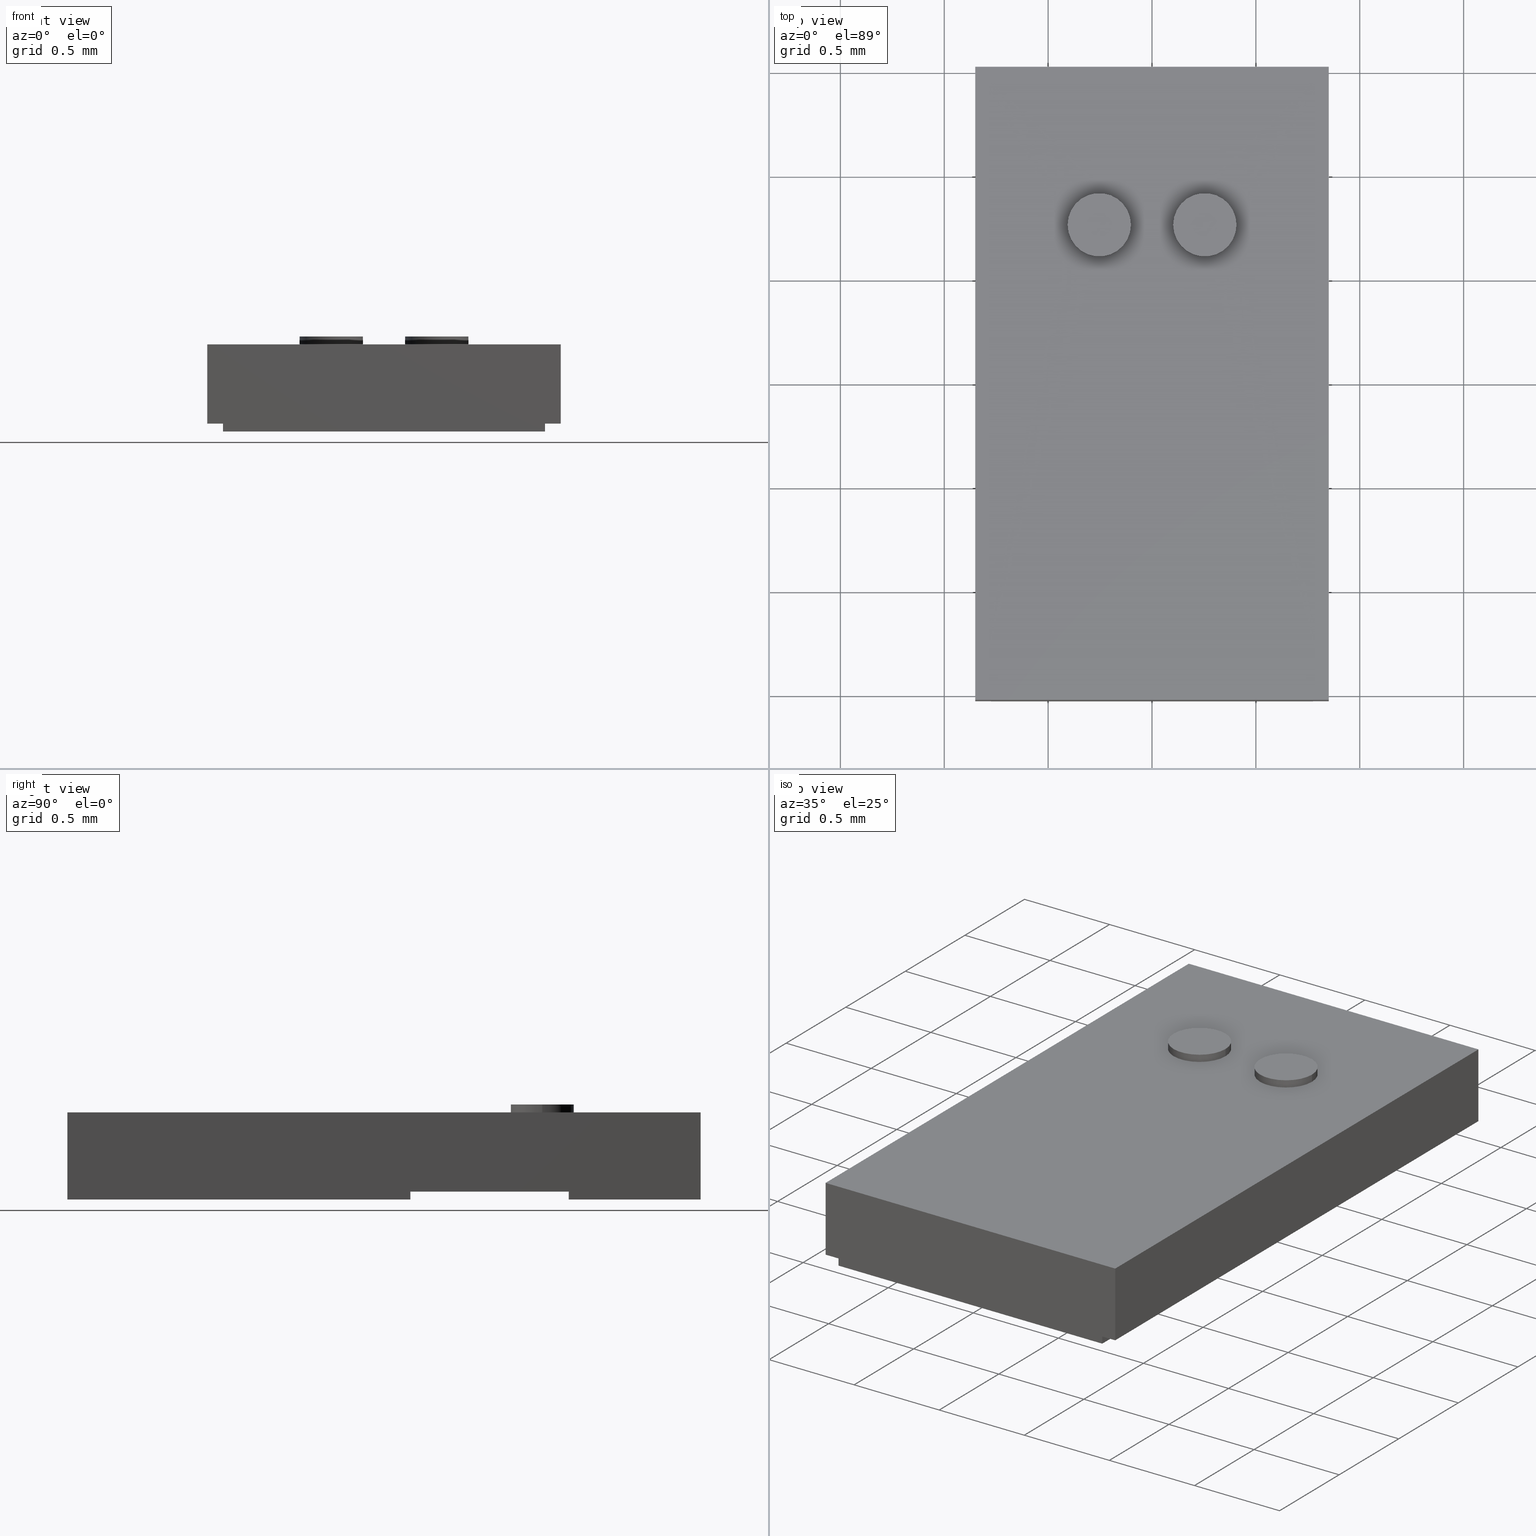
[diagram: canonical four-view strip — front | top / right | iso, engineering-drawing reading convention]
A machine part, canonical four-view strip (front | top / right | iso — engineering-drawing reading convention). The complete STEP part file that produces these views, byte-faithful:
ISO-10303-21;
HEADER;
FILE_DESCRIPTION (( 'STEP AP203' ),
    '1' );
FILE_NAME ('C12N50Z4.STEP',
    '2026-02-18T14:07:09',
    ( '' ),
    ( '' ),
    'SwSTEP 2.0',
    'SolidWorks 2023',
    '' );
FILE_SCHEMA (( 'CONFIG_CONTROL_DESIGN' ));
ENDSEC;

DATA;
#1 = ORIENTED_EDGE ( 'NONE', *, *, #377, .T. ) ;
#2 = CARTESIAN_POINT ( 'NONE',  ( -0.03049991361892168129, -0.05999999999984240162, 0.000000000000000000 ) ) ;
#3 = LINE ( 'NONE', #209, #186 ) ;
#4 = VECTOR ( 'NONE', #616, 39.37007874015748143 ) ;
#5 = DIRECTION ( 'NONE',  ( -3.334288087850889571E-05, -0.9999999994441259865, 0.000000000000000000 ) ) ;
#6 = DIRECTION ( 'NONE',  ( -0.9999999999999925615, -1.216743282002046877E-07, 0.000000000000000000 ) ) ;
#7 = CARTESIAN_POINT ( 'NONE',  ( 0.000000000000000000, 0.000000000000000000, 0.01800000000000000211 ) ) ;
#8 = PERSON_AND_ORGANIZATION_ROLE ( 'classification_officer' ) ;
#9 = DIRECTION ( 'NONE',  ( -0.000000000000000000, 0.000000000000000000, 1.000000000000000000 ) ) ;
#10 = ORIENTED_EDGE ( 'NONE', *, *, #119, .T. ) ;
#11 = CARTESIAN_POINT ( 'NONE',  ( -0.009999999999990906788, 0.02999999999997271516, 0.01800000000000000211 ) ) ;
#12 = ADVANCED_FACE ( 'NONE', ( #204 ), #655, .T. ) ;
#13 = DIRECTION ( 'NONE',  ( -1.000000000000000000, 0.000000000000000000, 0.000000000000000000 ) ) ;
#14 = ORIENTED_EDGE ( 'NONE', *, *, #358, .F. ) ;
#15 = AXIS2_PLACEMENT_3D ( 'NONE', #173, #278, #332 ) ;
#16 = CLOSED_SHELL ( 'NONE', ( #579, #12, #63, #367, #597, #292, #163, #350, #612, #243, #661, #86, #25, #642, #475, #500, #131, #445, #551, #223 ) ) ;
#17 = LINE ( 'NONE', #81, #487 ) ;
#18 = APPROVAL ( #515, 'UNSPECIFIED' ) ;
#19 = ORIENTED_EDGE ( 'NONE', *, *, #629, .F. ) ;
#20 = CARTESIAN_POINT ( 'NONE',  ( 0.000000000000000000, 0.000000000000000000, 0.000000000000000000 ) ) ;
#21 = ORIENTED_EDGE ( 'NONE', *, *, #150, .F. ) ;
#22 = DIRECTION ( 'NONE',  ( 0.000000000000000000, 0.000000000000000000, 1.000000000000000000 ) ) ;
#23 = ORIENTED_EDGE ( 'NONE', *, *, #154, .T. ) ;
#24 = CIRCLE ( 'NONE', #373, 0.006000000000000000992 ) ;
#25 = ADVANCED_FACE ( 'NONE', ( #565 ), #105, .T. ) ;
#26 = DIRECTION ( 'NONE',  ( -9.389164867444125509E-05, 0.9999999955921791139, 0.000000000000000000 ) ) ;
#27 = VECTOR ( 'NONE', #13, 39.37007874015748143 ) ;
#28 = LINE ( 'NONE', #591, #506 ) ;
#29 = ORIENTED_EDGE ( 'NONE', *, *, #436, .T. ) ;
#30 = FACE_OUTER_BOUND ( 'NONE', #174, .T. ) ;
#31 = CARTESIAN_POINT ( 'NONE',  ( -0.03350000000000363798, -0.05999999999994543032, 0.01649999999999999731 ) ) ;
#32 = ORIENTED_EDGE ( 'NONE', *, *, #264, .F. ) ;
#33 = DIRECTION ( 'NONE',  ( -0.000000000000000000, -0.000000000000000000, -1.000000000000000000 ) ) ;
#34 = EDGE_CURVE ( 'NONE', #237, #533, #40, .T. ) ;
#35 = VERTEX_POINT ( 'NONE', #49 ) ;
#36 = CARTESIAN_POINT ( 'NONE',  ( -0.03350000000000363798, 0.000000000000000000, 0.01649999999999999731 ) ) ;
#37 = EDGE_CURVE ( 'NONE', #427, #237, #256, .T. ) ;
#38 = ORIENTED_EDGE ( 'NONE', *, *, #407, .T. ) ;
#39 = DIRECTION ( 'NONE',  ( 0.000000000000000000, 0.000000000000000000, 1.000000000000000000 ) ) ;
#40 = LINE ( 'NONE', #509, #165 ) ;
#41 = DIRECTION ( 'NONE',  ( 9.389164867444124154E-05, -0.9999999955921791139, 0.000000000000000000 ) ) ;
#42 = CARTESIAN_POINT ( 'NONE',  ( 0.000000000000000000, 0.05999999999994543032, 0.01649999999999999731 ) ) ;
#43 = EDGE_CURVE ( 'NONE', #387, #179, #479, .T. ) ;
#44 = CARTESIAN_POINT ( 'NONE',  ( 0.009999999999990906788, 0.02999999999997271516, 0.01650000000000000078 ) ) ;
#45 = CC_DESIGN_APPROVAL ( #328, ( #107 ) ) ;
#46 = DIRECTION ( 'NONE',  ( 0.000000000000000000, 0.000000000000000000, 1.000000000000000000 ) ) ;
#47 = DIRECTION ( 'NONE',  ( -0.9999999994441262086, 3.334288087850890248E-05, 0.000000000000000000 ) ) ;
#48 = DATE_AND_TIME ( #545, #93 ) ;
#49 = CARTESIAN_POINT ( 'NONE',  ( -0.03049991361892168129, -0.05999999999984240162, 0.001500000000000004585 ) ) ;
#50 = PLANE ( 'NONE',  #272 ) ;
#51 = CALENDAR_DATE ( 2026, 18, 2 ) ;
#52 = EDGE_CURVE ( 'NONE', #427, #84, #145, .T. ) ;
#53 = CARTESIAN_POINT ( 'NONE',  ( 0.03350000000000363798, -0.05999999999994543032, 0.1539372584126108556 ) ) ;
#54 = DIRECTION ( 'NONE',  ( 1.216743282002047142E-07, -0.9999999999999926725, 0.000000000000000000 ) ) ;
#55 = COORDINATED_UNIVERSAL_TIME_OFFSET ( 5, 0, .BEHIND. ) ;
#56 = VECTOR ( 'NONE', #249, 39.37007874015748143 ) ;
#57 = LINE ( 'NONE', #321, #221 ) ;
#58 = VECTOR ( 'NONE', #339, 39.37007874015748143 ) ;
#59 = ORIENTED_EDGE ( 'NONE', *, *, #144, .F. ) ;
#60 = PLANE ( 'NONE',  #552 ) ;
#61 = CARTESIAN_POINT ( 'NONE',  ( 0.03049991361892523400, -0.05999999999984240162, 0.001500000000000004585 ) ) ;
#62 = VERTEX_POINT ( 'NONE', #608 ) ;
#63 = ADVANCED_FACE ( 'NONE', ( #420 ), #614, .F. ) ;
#64 = CARTESIAN_POINT ( 'NONE',  ( -0.03350000000000363798, -0.05999999999994543032, 0.001500000000000000031 ) ) ;
#65 = DIRECTION ( 'NONE',  ( 1.000000000000000000, 0.000000000000000000, -0.000000000000000000 ) ) ;
#66 = VERTEX_POINT ( 'NONE', #259 ) ;
#67 = DIRECTION ( 'NONE',  ( -1.000000000000000000, -0.000000000000000000, 0.000000000000000000 ) ) ;
#68 = CC_DESIGN_PERSON_AND_ORGANIZATION_ASSIGNMENT ( #207, #254, ( #649 ) ) ;
#69 = DIRECTION ( 'NONE',  ( -0.000000000000000000, -0.000000000000000000, -1.000000000000000000 ) ) ;
#70 = EDGE_LOOP ( 'NONE', ( #76, #664, #571, #222 ) ) ;
#71 = VECTOR ( 'NONE', #311, 39.37007874015748143 ) ;
#72 =( CONVERSION_BASED_UNIT ( 'INCH', #586 ) LENGTH_UNIT ( ) NAMED_UNIT ( #194 ) );
#73 = ORIENTED_EDGE ( 'NONE', *, *, #52, .F. ) ;
#74 = CARTESIAN_POINT ( 'NONE',  ( -0.01999791909383929686, 0.03499999729501723778, 0.001500000000000004585 ) ) ;
#75 = EDGE_CURVE ( 'NONE', #622, #451, #3, .T. ) ;
#76 = ORIENTED_EDGE ( 'NONE', *, *, #653, .F. ) ;
#77 = FACE_OUTER_BOUND ( 'NONE', #233, .T. ) ;
#78 = PRODUCT ( 'C12N50Z4', 'C12N50Z4', '', ( #644 ) ) ;
#79 = ORIENTED_EDGE ( 'NONE', *, *, #532, .T. ) ;
#80 = VECTOR ( 'NONE', #268, 39.37007874015748143 ) ;
#81 = CARTESIAN_POINT ( 'NONE',  ( 0.01999973361464313371, 0.06000000000003780087, 0.000000000000000000 ) ) ;
#82 = AXIS2_PLACEMENT_3D ( 'NONE', #193, #198, #618 ) ;
#83 = FACE_OUTER_BOUND ( 'NONE', #70, .T. ) ;
#84 = VERTEX_POINT ( 'NONE', #357 ) ;
#85 = COORDINATED_UNIVERSAL_TIME_OFFSET ( 5, 0, .BEHIND. ) ;
#86 = ADVANCED_FACE ( 'NONE', ( #605 ), #355, .T. ) ;
#87 = DIRECTION ( 'NONE',  ( -7.258082396677187364E-05, 0.9999999973660119723, 0.000000000000000000 ) ) ;
#88 = ORIENTED_EDGE ( 'NONE', *, *, #607, .F. ) ;
#89 = LINE ( 'NONE', #347, #111 ) ;
#90 = EDGE_CURVE ( 'NONE', #398, #114, #300, .T. ) ;
#91 = ORIENTED_EDGE ( 'NONE', *, *, #312, .T. ) ;
#92 = LINE ( 'NONE', #189, #56 ) ;
#93 = LOCAL_TIME ( 9, 7, 9.000000000000000000, #85 ) ;
#94 = ORIENTED_EDGE ( 'NONE', *, *, #461, .F. ) ;
#95 = DIRECTION ( 'NONE',  ( 1.000000000000000000, 0.000000000000000000, 0.000000000000000000 ) ) ;
#96 = DIRECTION ( 'NONE',  ( 0.000000000000000000, 0.000000000000000000, 1.000000000000000000 ) ) ;
#97 = EDGE_CURVE ( 'NONE', #62, #290, #274, .T. ) ;
#98 = PLANE ( 'NONE',  #281 ) ;
#99 = CARTESIAN_POINT ( 'NONE',  ( -0.009999999999990906788, 0.02999999999997271516, 0.01800000000000000211 ) ) ;
#100 = DIRECTION ( 'NONE',  ( -9.389164867444124154E-05, 0.9999999955921791139, 0.000000000000000000 ) ) ;
#101 =( GEOMETRIC_REPRESENTATION_CONTEXT ( 3 ) GLOBAL_UNCERTAINTY_ASSIGNED_CONTEXT ( ( #576 ) ) GLOBAL_UNIT_ASSIGNED_CONTEXT ( ( #72, #383, #633 ) ) REPRESENTATION_CONTEXT ( 'NONE', 'WORKASPACE' ) );
#102 = ORIENTED_EDGE ( 'NONE', *, *, #508, .F. ) ;
#103 = CARTESIAN_POINT ( 'NONE',  ( -0.03049791909393206879, 0.004999993584078765707, 0.000000000000000000 ) ) ;
#104 = PERSON_AND_ORGANIZATION ( #333, #386 ) ;
#105 = PLANE ( 'NONE',  #396 ) ;
#106 = CARTESIAN_POINT ( 'NONE',  ( -0.03049991361892168129, -0.05999999999984240162, 0.09064170441960506253 ) ) ;
#107 = PRODUCT_DEFINITION ( 'UNKNOWN', '', #649, #307 ) ;
#108 = EDGE_LOOP ( 'NONE', ( #19, #345, #392, #341 ) ) ;
#109 = DIRECTION ( 'NONE',  ( 1.000000000000000000, 0.000000000000000000, 0.000000000000000000 ) ) ;
#110 = DATE_AND_TIME ( #360, #592 ) ;
#111 = VECTOR ( 'NONE', #548, 39.37007874015748143 ) ;
#112 = LINE ( 'NONE', #526, #27 ) ;
#113 = VECTOR ( 'NONE', #380, 39.37007874015748143 ) ;
#114 = VERTEX_POINT ( 'NONE', #560 ) ;
#115 = DIRECTION ( 'NONE',  ( 0.000000000000000000, 0.000000000000000000, 1.000000000000000000 ) ) ;
#116 = PERSON_AND_ORGANIZATION ( #333, #386 ) ;
#117 = DIRECTION ( 'NONE',  ( 3.068500285466872627E-05, 0.9999999995292152555, 0.000000000000000000 ) ) ;
#118 = ORIENTED_EDGE ( 'NONE', *, *, #119, .F. ) ;
#119 = EDGE_CURVE ( 'NONE', #35, #533, #112, .T. ) ;
#120 = PLANE ( 'NONE',  #342 ) ;
#121 = ORIENTED_EDGE ( 'NONE', *, *, #490, .F. ) ;
#122 = DIRECTION ( 'NONE',  ( 1.000000000000000000, 0.000000000000000000, -0.000000000000000000 ) ) ;
#123 = ORIENTED_EDGE ( 'NONE', *, *, #154, .F. ) ;
#124 = APPROVAL_PERSON_ORGANIZATION ( #104, #183, #305 ) ;
#125 = CYLINDRICAL_SURFACE ( 'NONE', #15, 0.006000000000000000125 ) ;
#126 = VERTEX_POINT ( 'NONE', #129 ) ;
#127 = PLANE ( 'NONE',  #132 ) ;
#128 = ORIENTED_EDGE ( 'NONE', *, *, #336, .T. ) ;
#129 = CARTESIAN_POINT ( 'NONE',  ( 0.03050208090621708487, 0.005000001006212785939, 0.001500000000000004585 ) ) ;
#130 = ORIENTED_EDGE ( 'NONE', *, *, #399, .F. ) ;
#131 = ADVANCED_FACE ( 'NONE', ( #269 ), #628, .F. ) ;
#132 = AXIS2_PLACEMENT_3D ( 'NONE', #636, #67, #22 ) ;
#133 = APPROVAL_STATUS ( 'not_yet_approved' ) ;
#134 = AXIS2_PLACEMENT_3D ( 'NONE', #522, #516, #117 ) ;
#135 = PLANE ( 'NONE',  #294 ) ;
#136 = ORIENTED_EDGE ( 'NONE', *, *, #172, .T. ) ;
#137 = DIRECTION ( 'NONE',  ( -0.000000000000000000, -0.000000000000000000, -1.000000000000000000 ) ) ;
#138 = ORIENTED_EDGE ( 'NONE', *, *, #236, .F. ) ;
#139 = CARTESIAN_POINT ( 'NONE',  ( 0.009999999999990906788, 0.02999999999997271516, 0.01800000000000000211 ) ) ;
#140 = ORIENTED_EDGE ( 'NONE', *, *, #37, .T. ) ;
#141 = VECTOR ( 'NONE', #100, 39.37007874015748854 ) ;
#142 = DIRECTION ( 'NONE',  ( 1.000000000000000000, 0.000000000000000000, 0.000000000000000000 ) ) ;
#143 = AXIS2_PLACEMENT_3D ( 'NONE', #99, #46, #659 ) ;
#144 = EDGE_CURVE ( 'NONE', #126, #643, #28, .T. ) ;
#145 = LINE ( 'NONE', #53, #604 ) ;
#146 = CARTESIAN_POINT ( 'NONE',  ( -0.01999791909383929686, 0.03499999729501723778, 0.000000000000000000 ) ) ;
#147 = DIRECTION ( 'NONE',  ( -0.000000000000000000, -0.000000000000000000, -1.000000000000000000 ) ) ;
#148 = PLANE ( 'NONE',  #448 ) ;
#149 = VERTEX_POINT ( 'NONE', #528 ) ;
#150 = EDGE_CURVE ( 'NONE', #229, #126, #540, .T. ) ;
#151 = CARTESIAN_POINT ( 'NONE',  ( 0.02000208090612431988, 0.03499999729501723778, 0.001500000000000004585 ) ) ;
#152 = CIRCLE ( 'NONE', #208, 0.005999999999999998390 ) ;
#153 = CARTESIAN_POINT ( 'NONE',  ( 0.01999973361464313371, 0.06000000000003780087, 0.09064170441960506253 ) ) ;
#154 = EDGE_CURVE ( 'NONE', #126, #226, #168, .T. ) ;
#155 = FACE_OUTER_BOUND ( 'NONE', #378, .T. ) ;
#156 = ORIENTED_EDGE ( 'NONE', *, *, #494, .T. ) ;
#157 = CARTESIAN_POINT ( 'NONE',  ( 0.01999973361464313371, 0.06000000000003780087, 0.001500000000000004585 ) ) ;
#158 = DIRECTION ( 'NONE',  ( 0.000000000000000000, -0.000000000000000000, -1.000000000000000000 ) ) ;
#159 = ORIENTED_EDGE ( 'NONE', *, *, #172, .F. ) ;
#160 = DIRECTION ( 'NONE',  ( 0.000000000000000000, 0.000000000000000000, 1.000000000000000000 ) ) ;
#161 = COORDINATED_UNIVERSAL_TIME_OFFSET ( 5, 0, .BEHIND. ) ;
#162 = VECTOR ( 'NONE', #454, 39.37007874015748143 ) ;
#163 = ADVANCED_FACE ( 'NONE', ( #220 ), #120, .F. ) ;
#164 = DIRECTION ( 'NONE',  ( -0.000000000000000000, -0.000000000000000000, -1.000000000000000000 ) ) ;
#165 = VECTOR ( 'NONE', #252, 39.37007874015748143 ) ;
#166 = EDGE_LOOP ( 'NONE', ( #282, #136, #547, #190 ) ) ;
#167 = FACE_BOUND ( 'NONE', #638, .T. ) ;
#168 = LINE ( 'NONE', #232, #404 ) ;
#169 = ORIENTED_EDGE ( 'NONE', *, *, #544, .T. ) ;
#170 = APPLICATION_PROTOCOL_DEFINITION ( 'international standard', 'config_control_design', 1994, #331 ) ;
#171 = ORIENTED_EDGE ( 'NONE', *, *, #37, .F. ) ;
#172 = EDGE_CURVE ( 'NONE', #387, #62, #57, .T. ) ;
#173 = CARTESIAN_POINT ( 'NONE',  ( 0.009999999999990906788, 0.02999999999997271516, 0.03497056274847714502 ) ) ;
#174 = EDGE_LOOP ( 'NONE', ( #14, #585, #432, #171 ) ) ;
#175 = LOCAL_TIME ( 9, 7, 9.000000000000000000, #261 ) ;
#176 = ORIENTED_EDGE ( 'NONE', *, *, #389, .F. ) ;
#177 =( LENGTH_UNIT ( ) NAMED_UNIT ( * ) SI_UNIT ( $, .METRE. ) );
#178 = DIRECTION ( 'NONE',  ( 1.000000000000000000, 0.000000000000000000, 0.000000000000000000 ) ) ;
#179 = VERTEX_POINT ( 'NONE', #469 ) ;
#180 = APPLICATION_PROTOCOL_DEFINITION ( 'international standard', 'config_control_design', 1994, #225 ) ;
#181 = PRODUCT_DEFINITION_SHAPE ( 'NONE', 'NONE',  #107 ) ;
#182 = CARTESIAN_POINT ( 'NONE',  ( -0.01999973361463958099, 0.06000000000003780087, 0.09064170441960506253 ) ) ;
#183 = APPROVAL ( #471, 'UNSPECIFIED' ) ;
#184 = EDGE_LOOP ( 'NONE', ( #275, #395, #568, #650 ) ) ;
#185 = VECTOR ( 'NONE', #253, 39.37007874015748143 ) ;
#186 = VECTOR ( 'NONE', #147, 39.37007874015748143 ) ;
#187 = CARTESIAN_POINT ( 'NONE',  ( 0.009999999999990906788, 0.02999999999997271516, 0.01800000000000000211 ) ) ;
#188 = ORIENTED_EDGE ( 'NONE', *, *, #607, .T. ) ;
#189 = CARTESIAN_POINT ( 'NONE',  ( 0.03350000000000363798, 0.000000000000000000, 0.01649999999999999731 ) ) ;
#190 = ORIENTED_EDGE ( 'NONE', *, *, #271, .F. ) ;
#191 = EDGE_CURVE ( 'NONE', #149, #84, #318, .T. ) ;
#192 = FACE_OUTER_BOUND ( 'NONE', #596, .T. ) ;
#193 = CARTESIAN_POINT ( 'NONE',  ( -0.009999999999990906788, 0.02999999999997271516, 0.03497056274847714502 ) ) ;
#194 = DIMENSIONAL_EXPONENTS ( 1.000000000000000000, 0.000000000000000000, 0.000000000000000000, 0.000000000000000000, 0.000000000000000000, 0.000000000000000000, 0.000000000000000000 ) ;
#195 = VECTOR ( 'NONE', #493, 39.37007874015748143 ) ;
#196 = DIRECTION ( 'NONE',  ( 0.9999999973660119723, 7.258082396677187364E-05, -0.000000000000000000 ) ) ;
#197 = VECTOR ( 'NONE', #403, 39.37007874015748143 ) ;
#198 = DIRECTION ( 'NONE',  ( -0.000000000000000000, -0.000000000000000000, -1.000000000000000000 ) ) ;
#199 = FACE_OUTER_BOUND ( 'NONE', #405, .T. ) ;
#200 = EDGE_CURVE ( 'NONE', #398, #293, #263, .T. ) ;
#201 = DIRECTION ( 'NONE',  ( 0.000000000000000000, -0.000000000000000000, -1.000000000000000000 ) ) ;
#202 = DIRECTION ( 'NONE',  ( -0.000000000000000000, -0.000000000000000000, -1.000000000000000000 ) ) ;
#203 = COORDINATED_UNIVERSAL_TIME_OFFSET ( 5, 0, .BEHIND. ) ;
#204 = FACE_OUTER_BOUND ( 'NONE', #166, .T. ) ;
#205 = CC_DESIGN_PERSON_AND_ORGANIZATION_ASSIGNMENT ( #116, #8, ( #353 ) ) ;
#206 = CARTESIAN_POINT ( 'NONE',  ( 0.003999999999990905795, 0.02999999999997271516, 0.01650000000000000078 ) ) ;
#207 = PERSON_AND_ORGANIZATION ( #333, #386 ) ;
#208 = AXIS2_PLACEMENT_3D ( 'NONE', #139, #660, #238 ) ;
#209 = CARTESIAN_POINT ( 'NONE',  ( 0.01599999999999090344, 0.02999999999997271516, 0.03497056274847714502 ) ) ;
#210 = LINE ( 'NONE', #106, #80 ) ;
#211 = PERSON_AND_ORGANIZATION ( #333, #386 ) ;
#212 = PLANE ( 'NONE',  #519 ) ;
#213 = ORIENTED_EDGE ( 'NONE', *, *, #629, .T. ) ;
#214 = CARTESIAN_POINT ( 'NONE',  ( 0.03049991361892523400, -0.05999999999984240162, 0.09064170441960506253 ) ) ;
#215 = EDGE_CURVE ( 'NONE', #462, #287, #273, .T. ) ;
#216 = LINE ( 'NONE', #624, #626 ) ;
#217 = VERTEX_POINT ( 'NONE', #480 ) ;
#218 = DIRECTION ( 'NONE',  ( -0.9999999999999925615, -1.216743282002046877E-07, 0.000000000000000000 ) ) ;
#219 = AXIS2_PLACEMENT_3D ( 'NONE', #44, #503, #142 ) ;
#220 = FACE_OUTER_BOUND ( 'NONE', #108, .T. ) ;
#221 = VECTOR ( 'NONE', #577, 39.37007874015748143 ) ;
#222 = ORIENTED_EDGE ( 'NONE', *, *, #588, .F. ) ;
#223 = ADVANCED_FACE ( 'NONE', ( #83 ), #441, .F. ) ;
#224 = ORIENTED_EDGE ( 'NONE', *, *, #236, .T. ) ;
#225 = APPLICATION_CONTEXT ( 'configuration controlled 3d designs of mechanical parts and assemblies' ) ;
#226 = VERTEX_POINT ( 'NONE', #645 ) ;
#227 = EDGE_CURVE ( 'NONE', #533, #293, #391, .T. ) ;
#228 = DIRECTION ( 'NONE',  ( -3.068500285466872627E-05, -0.9999999995292152555, 0.000000000000000000 ) ) ;
#229 = VERTEX_POINT ( 'NONE', #61 ) ;
#230 = VECTOR ( 'NONE', #472, 39.37007874015748143 ) ;
#231 = LINE ( 'NONE', #639, #316 ) ;
#232 = CARTESIAN_POINT ( 'NONE',  ( 0.03050208090621708487, 0.005000001006212785939, 0.001500000000000004585 ) ) ;
#233 = EDGE_LOOP ( 'NONE', ( #536, #326, #337, #128 ) ) ;
#234 = PERSON_AND_ORGANIZATION_ROLE ( 'design_owner' ) ;
#235 = CARTESIAN_POINT ( 'NONE',  ( -0.03350000000000363798, 0.05999999999994543032, 0.1539372584126108556 ) ) ;
#236 = EDGE_CURVE ( 'NONE', #217, #384, #286, .T. ) ;
#237 = VERTEX_POINT ( 'NONE', #31 ) ;
#238 = DIRECTION ( 'NONE',  ( 1.000000000000000000, 0.000000000000000000, 0.000000000000000000 ) ) ;
#239 = ORIENTED_EDGE ( 'NONE', *, *, #276, .F. ) ;
#240 = CIRCLE ( 'NONE', #248, 0.006000000000000000992 ) ;
#241 = DIRECTION ( 'NONE',  ( 0.000000000000000000, 1.000000000000000000, 0.000000000000000000 ) ) ;
#242 = ORIENTED_EDGE ( 'NONE', *, *, #346, .T. ) ;
#243 = ADVANCED_FACE ( 'NONE', ( #393 ), #212, .T. ) ;
#244 = DIRECTION ( 'NONE',  ( -0.000000000000000000, -0.000000000000000000, -1.000000000000000000 ) ) ;
#245 = ORIENTED_EDGE ( 'NONE', *, *, #215, .T. ) ;
#246 = CARTESIAN_POINT ( 'NONE',  ( 0.03049991361892523400, -0.05999999999984240162, 0.09064170441960506253 ) ) ;
#247 = DIRECTION ( 'NONE',  ( 1.000000000000000000, 0.000000000000000000, -0.000000000000000000 ) ) ;
#248 = AXIS2_PLACEMENT_3D ( 'NONE', #11, #115, #109 ) ;
#249 = DIRECTION ( 'NONE',  ( 0.000000000000000000, -1.000000000000000000, 0.000000000000000000 ) ) ;
#250 = VECTOR ( 'NONE', #325, 39.37007874015748143 ) ;
#251 = EDGE_CURVE ( 'NONE', #600, #433, #499, .T. ) ;
#252 = DIRECTION ( 'NONE',  ( -0.000000000000000000, -0.000000000000000000, -1.000000000000000000 ) ) ;
#253 = DIRECTION ( 'NONE',  ( -0.000000000000000000, -0.000000000000000000, -1.000000000000000000 ) ) ;
#254 = PERSON_AND_ORGANIZATION_ROLE ( 'design_supplier' ) ;
#255 = PRODUCT_RELATED_PRODUCT_CATEGORY ( 'detail', '', ( #78 ) ) ;
#256 = LINE ( 'NONE', #662, #197 ) ;
#257 = DIRECTION ( 'NONE',  ( 0.9999999999999925615, 1.216743282002046877E-07, 0.000000000000000000 ) ) ;
#258 = SECURITY_CLASSIFICATION_LEVEL ( 'unclassified' ) ;
#259 = CARTESIAN_POINT ( 'NONE',  ( 0.03049991361892523400, -0.05999999999984240162, 0.000000000000000000 ) ) ;
#260 = DIRECTION ( 'NONE',  ( -1.000000000000000000, 0.000000000000000000, 0.000000000000000000 ) ) ;
#261 = COORDINATED_UNIVERSAL_TIME_OFFSET ( 5, 0, .BEHIND. ) ;
#262 = CC_DESIGN_APPROVAL ( #183, ( #649 ) ) ;
#263 = LINE ( 'NONE', #235, #250 ) ;
#264 = EDGE_CURVE ( 'NONE', #114, #149, #216, .T. ) ;
#265 = DIRECTION ( 'NONE',  ( 1.000000000000000000, 0.000000000000000000, -0.000000000000000000 ) ) ;
#266 = CARTESIAN_POINT ( 'NONE',  ( 0.03049991361892523400, -0.05999999999984240162, 0.001500000000000004585 ) ) ;
#267 = EDGE_LOOP ( 'NONE', ( #88, #497 ) ) ;
#268 = DIRECTION ( 'NONE',  ( -0.000000000000000000, -0.000000000000000000, -1.000000000000000000 ) ) ;
#269 = FACE_OUTER_BOUND ( 'NONE', #348, .T. ) ;
#270 = ORIENTED_EDGE ( 'NONE', *, *, #508, .T. ) ;
#271 = EDGE_CURVE ( 'NONE', #179, #290, #376, .T. ) ;
#272 = AXIS2_PLACEMENT_3D ( 'NONE', #7, #160, #265 ) ;
#273 = LINE ( 'NONE', #444, #593 ) ;
#274 = CIRCLE ( 'NONE', #429, 0.006000000000000000992 ) ;
#275 = ORIENTED_EDGE ( 'NONE', *, *, #200, .T. ) ;
#276 = EDGE_CURVE ( 'NONE', #622, #365, #152, .T. ) ;
#277 = ORIENTED_EDGE ( 'NONE', *, *, #336, .F. ) ;
#278 = DIRECTION ( 'NONE',  ( -0.000000000000000000, -0.000000000000000000, -1.000000000000000000 ) ) ;
#279 = ORIENTED_EDGE ( 'NONE', *, *, #323, .F. ) ;
#280 = DIRECTION ( 'NONE',  ( 1.000000000000000000, 0.000000000000000000, 0.000000000000000000 ) ) ;
#281 = AXIS2_PLACEMENT_3D ( 'NONE', #297, #196, #87 ) ;
#282 = ORIENTED_EDGE ( 'NONE', *, *, #43, .F. ) ;
#283 = AXIS2_PLACEMENT_3D ( 'NONE', #153, #364, #201 ) ;
#284 = EDGE_CURVE ( 'NONE', #580, #296, #458, .T. ) ;
#285 = DIRECTION ( 'NONE',  ( -1.000000000000000000, 0.000000000000000000, 0.000000000000000000 ) ) ;
#286 = LINE ( 'NONE', #182, #438 ) ;
#287 = VERTEX_POINT ( 'NONE', #554 ) ;
#288 = PERSON_AND_ORGANIZATION ( #333, #386 ) ;
#289 = CARTESIAN_POINT ( 'NONE',  ( -0.03049791909393206879, 0.004999993584078765707, 0.09064170441960506253 ) ) ;
#290 = VERTEX_POINT ( 'NONE', #501 ) ;
#291 = LINE ( 'NONE', #602, #635 ) ;
#292 = ADVANCED_FACE ( 'NONE', ( #400 ), #550, .F. ) ;
#293 = VERTEX_POINT ( 'NONE', #356 ) ;
#294 = AXIS2_PLACEMENT_3D ( 'NONE', #606, #656, #654 ) ;
#295 = DIRECTION ( 'NONE',  ( 0.000000000000000000, 0.000000000000000000, 1.000000000000000000 ) ) ;
#296 = VERTEX_POINT ( 'NONE', #498 ) ;
#297 = CARTESIAN_POINT ( 'NONE',  ( -0.01999973361463958099, 0.06000000000003780087, 0.09064170441960506253 ) ) ;
#298 = DIRECTION ( 'NONE',  ( -0.000000000000000000, -0.000000000000000000, -1.000000000000000000 ) ) ;
#299 = CARTESIAN_POINT ( 'NONE',  ( -0.01999973361463958099, 0.06000000000003780087, 0.000000000000000000 ) ) ;
#300 = LINE ( 'NONE', #42, #304 ) ;
#301 = VECTOR ( 'NONE', #385, 39.37007874015748854 ) ;
#302 = CC_DESIGN_DATE_AND_TIME_ASSIGNMENT ( #110, #413, ( #107 ) ) ;
#303 = CARTESIAN_POINT ( 'NONE',  ( -0.01999791909383929686, 0.03499999729501723778, 0.09064170441960506253 ) ) ;
#304 = VECTOR ( 'NONE', #247, 39.37007874015748143 ) ;
#305 = APPROVAL_ROLE ( '' ) ;
#306 = ORIENTED_EDGE ( 'NONE', *, *, #588, .T. ) ;
#307 = DESIGN_CONTEXT ( 'detailed design', #225, 'design' ) ;
#308 = LINE ( 'NONE', #520, #615 ) ;
#309 = PERSON_AND_ORGANIZATION ( #333, #386 ) ;
#310 = ORIENTED_EDGE ( 'NONE', *, *, #200, .F. ) ;
#311 = DIRECTION ( 'NONE',  ( 7.258082396677187364E-05, -0.9999999973660119723, 0.000000000000000000 ) ) ;
#312 = EDGE_CURVE ( 'NONE', #229, #66, #452, .T. ) ;
#313 = CARTESIAN_POINT ( 'NONE',  ( 0.000000000000000000, 0.000000000000000000, 0.000000000000000000 ) ) ;
#314 = LOCAL_TIME ( 9, 7, 9.000000000000000000, #55 ) ;
#315 = CARTESIAN_POINT ( 'NONE',  ( -0.01999973361463958099, 0.06000000000003780087, 0.000000000000000000 ) ) ;
#316 = VECTOR ( 'NONE', #228, 39.37007874015748854 ) ;
#317 = DATE_TIME_ROLE ( 'classification_date' ) ;
#318 = LINE ( 'NONE', #431, #113 ) ;
#319 = ORIENTED_EDGE ( 'NONE', *, *, #407, .F. ) ;
#320 = LINE ( 'NONE', #315, #657 ) ;
#321 = CARTESIAN_POINT ( 'NONE',  ( -0.003999999999990904928, 0.02999999999997271516, 0.03497056274847714502 ) ) ;
#322 = ORIENTED_EDGE ( 'NONE', *, *, #276, .T. ) ;
#323 = EDGE_CURVE ( 'NONE', #293, #217, #291, .T. ) ;
#324 = CARTESIAN_POINT ( 'NONE',  ( 0.03049991361892523400, -0.05999999999984240162, 0.000000000000000000 ) ) ;
#325 = DIRECTION ( 'NONE',  ( -0.000000000000000000, -0.000000000000000000, -1.000000000000000000 ) ) ;
#326 = ORIENTED_EDGE ( 'NONE', *, *, #377, .F. ) ;
#327 = CARTESIAN_POINT ( 'NONE',  ( -0.01999791909383929686, 0.03499999729501723778, 0.09064170441960506253 ) ) ;
#328 = APPROVAL ( #133, 'UNSPECIFIED' ) ;
#329 = AXIS2_PLACEMENT_3D ( 'NONE', #663, #202, #463 ) ;
#330 = EDGE_LOOP ( 'NONE', ( #270, #630 ) ) ;
#331 = APPLICATION_CONTEXT ( 'configuration controlled 3d designs of mechanical parts and assemblies' ) ;
#332 = DIRECTION ( 'NONE',  ( -1.000000000000000000, 0.000000000000000000, 0.000000000000000000 ) ) ;
#333 = PERSON ( 'UNSPECIFIED', 'UNSPECIFIED', 'UNSPECIFIED', ('UNSPECIFIED'), ('UNSPECIFIED'), ('UNSPECIFIED') ) ;
#334 = ORIENTED_EDGE ( 'NONE', *, *, #436, .F. ) ;
#335 = DIRECTION ( 'NONE',  ( 0.000000000000000000, 0.000000000000000000, 1.000000000000000000 ) ) ;
#336 = EDGE_CURVE ( 'NONE', #442, #451, #478, .T. ) ;
#337 = ORIENTED_EDGE ( 'NONE', *, *, #399, .T. ) ;
#338 = DIRECTION ( 'NONE',  ( 0.000000000000000000, 1.000000000000000000, 0.000000000000000000 ) ) ;
#339 = DIRECTION ( 'NONE',  ( -0.000000000000000000, 1.000000000000000000, 0.000000000000000000 ) ) ;
#340 = VECTOR ( 'NONE', #510, 39.37007874015748854 ) ;
#341 = ORIENTED_EDGE ( 'NONE', *, *, #532, .F. ) ;
#342 = AXIS2_PLACEMENT_3D ( 'NONE', #313, #476, #65 ) ;
#343 = APPROVAL_ROLE ( '' ) ;
#344 = DIRECTION ( 'NONE',  ( 1.000000000000000000, 0.000000000000000000, 0.000000000000000000 ) ) ;
#345 = ORIENTED_EDGE ( 'NONE', *, *, #632, .F. ) ;
#346 = EDGE_CURVE ( 'NONE', #451, #442, #582, .T. ) ;
#347 = CARTESIAN_POINT ( 'NONE',  ( 0.02000208090612431988, 0.03499999729501723778, 0.09064170441960506253 ) ) ;
#348 = EDGE_LOOP ( 'NONE', ( #334, #492, #439, #557 ) ) ;
#349 = CARTESIAN_POINT ( 'NONE',  ( -0.03049791909393206879, 0.004999993584078765707, 0.001500000000000004585 ) ) ;
#350 = ADVANCED_FACE ( 'NONE', ( #199 ), #135, .T. ) ;
#351 = EDGE_LOOP ( 'NONE', ( #123, #381, #169, #176 ) ) ;
#352 = VECTOR ( 'NONE', #241, 39.37007874015748143 ) ;
#353 = SECURITY_CLASSIFICATION ( '', '', #258 ) ;
#354 = DIRECTION ( 'NONE',  ( -0.9999999955921792250, -9.389164867444125509E-05, 0.000000000000000000 ) ) ;
#355 = CYLINDRICAL_SURFACE ( 'NONE', #562, 0.006000000000000000992 ) ;
#356 = CARTESIAN_POINT ( 'NONE',  ( -0.03350000000000363798, 0.05999999999994543032, 0.001500000000000000031 ) ) ;
#357 = CARTESIAN_POINT ( 'NONE',  ( 0.03350000000000363798, -0.05999999999994543032, 0.001500000000000000031 ) ) ;
#358 = EDGE_CURVE ( 'NONE', #114, #427, #92, .T. ) ;
#359 = LINE ( 'NONE', #303, #185 ) ;
#360 = CALENDAR_DATE ( 2026, 18, 2 ) ;
#361 = DIRECTION ( 'NONE',  ( 1.000000000000000000, 0.000000000000000000, 0.000000000000000000 ) ) ;
#362 = VECTOR ( 'NONE', #566, 39.37007874015748143 ) ;
#363 = FACE_OUTER_BOUND ( 'NONE', #523, .T. ) ;
#364 = DIRECTION ( 'NONE',  ( 0.000000000000000000, -1.000000000000000000, 0.000000000000000000 ) ) ;
#365 = VERTEX_POINT ( 'NONE', #648 ) ;
#366 = LINE ( 'NONE', #524, #362 ) ;
#367 = ADVANCED_FACE ( 'NONE', ( #192 ), #98, .F. ) ;
#368 = EDGE_LOOP ( 'NONE', ( #159, #102, #575, #188 ) ) ;
#369 = LINE ( 'NONE', #151, #141 ) ;
#370 = CARTESIAN_POINT ( 'NONE',  ( -0.01999791909383929686, 0.03499999729501723778, 0.001500000000000004585 ) ) ;
#371 = ORIENTED_EDGE ( 'NONE', *, *, #191, .F. ) ;
#372 = FACE_OUTER_BOUND ( 'NONE', #390, .T. ) ;
#373 = AXIS2_PLACEMENT_3D ( 'NONE', #484, #335, #280 ) ;
#374 = DATE_AND_TIME ( #610, #601 ) ;
#375 = VECTOR ( 'NONE', #244, 39.37007874015748143 ) ;
#376 = LINE ( 'NONE', #574, #375 ) ;
#377 = EDGE_CURVE ( 'NONE', #365, #622, #637, .T. ) ;
#378 = EDGE_LOOP ( 'NONE', ( #652, #631, #453, #319 ) ) ;
#379 = PLANE ( 'NONE',  #505 ) ;
#380 = DIRECTION ( 'NONE',  ( 0.000000000000000000, -1.000000000000000000, 0.000000000000000000 ) ) ;
#381 = ORIENTED_EDGE ( 'NONE', *, *, #144, .T. ) ;
#382 = CC_DESIGN_DATE_AND_TIME_ASSIGNMENT ( #374, #317, ( #353 ) ) ;
#383 =( NAMED_UNIT ( * ) PLANE_ANGLE_UNIT ( ) SI_UNIT ( $, .RADIAN. ) );
#384 = VERTEX_POINT ( 'NONE', #299 ) ;
#385 = DIRECTION ( 'NONE',  ( 3.334288087850889571E-05, 0.9999999994441262086, 0.000000000000000000 ) ) ;
#386 = ORGANIZATION ( 'UNSPECIFIED', 'UNSPECIFIED', '' ) ;
#387 = VERTEX_POINT ( 'NONE', #546 ) ;
#388 = LINE ( 'NONE', #324, #301 ) ;
#389 = EDGE_CURVE ( 'NONE', #226, #527, #406, .T. ) ;
#390 = EDGE_LOOP ( 'NONE', ( #1, #322 ) ) ;
#391 = LINE ( 'NONE', #587, #58 ) ;
#392 = ORIENTED_EDGE ( 'NONE', *, *, #284, .F. ) ;
#393 = FACE_OUTER_BOUND ( 'NONE', #543, .T. ) ;
#394 = VECTOR ( 'NONE', #33, 39.37007874015748143 ) ;
#395 = ORIENTED_EDGE ( 'NONE', *, *, #227, .F. ) ;
#396 = AXIS2_PLACEMENT_3D ( 'NONE', #611, #96, #415 ) ;
#397 = LINE ( 'NONE', #595, #531 ) ;
#398 = VERTEX_POINT ( 'NONE', #447 ) ;
#399 = EDGE_CURVE ( 'NONE', #365, #442, #397, .T. ) ;
#400 = FACE_OUTER_BOUND ( 'NONE', #411, .T. ) ;
#401 = ORIENTED_EDGE ( 'NONE', *, *, #323, .T. ) ;
#402 = DIRECTION ( 'NONE',  ( 1.000000000000000000, 0.000000000000000000, -0.000000000000000000 ) ) ;
#403 = DIRECTION ( 'NONE',  ( -1.000000000000000000, 0.000000000000000000, 0.000000000000000000 ) ) ;
#404 = VECTOR ( 'NONE', #6, 39.37007874015748143 ) ;
#405 = EDGE_LOOP ( 'NONE', ( #495, #371, #32, #456 ) ) ;
#406 = LINE ( 'NONE', #289, #394 ) ;
#407 = EDGE_CURVE ( 'NONE', #433, #296, #89, .T. ) ;
#408 = DIRECTION ( 'NONE',  ( -0.000000000000000000, -0.000000000000000000, -1.000000000000000000 ) ) ;
#409 = CARTESIAN_POINT ( 'NONE',  ( 0.02000208090612431988, 0.03499999729501723778, 0.09064170441960506253 ) ) ;
#410 = DATE_AND_TIME ( #51, #175 ) ;
#411 = EDGE_LOOP ( 'NONE', ( #121, #38, #583, #549 ) ) ;
#412 = CARTESIAN_POINT ( 'NONE',  ( -0.01999791909383929686, 0.03499999729501723778, 0.000000000000000000 ) ) ;
#413 = DATE_TIME_ROLE ( 'creation_date' ) ;
#414 = CC_DESIGN_APPROVAL ( #18, ( #353 ) ) ;
#415 = DIRECTION ( 'NONE',  ( 1.000000000000000000, 0.000000000000000000, -0.000000000000000000 ) ) ;
#416 = EDGE_CURVE ( 'NONE', #237, #398, #496, .T. ) ;
#417 = APPROVAL_PERSON_ORGANIZATION ( #590, #328, #343 ) ;
#418 = CYLINDRICAL_SURFACE ( 'NONE', #329, 0.006000000000000000125 ) ;
#419 = APPROVAL_DATE_TIME ( #410, #183 ) ;
#420 = FACE_OUTER_BOUND ( 'NONE', #449, .T. ) ;
#421 = LINE ( 'NONE', #613, #71 ) ;
#422 = APPROVAL_DATE_TIME ( #617, #18 ) ;
#423 = CARTESIAN_POINT ( 'NONE',  ( 0.000000000000000000, -0.05999999999994543032, 0.1539372584126108556 ) ) ;
#424 = ORIENTED_EDGE ( 'NONE', *, *, #482, .F. ) ;
#425 = FACE_OUTER_BOUND ( 'NONE', #634, .T. ) ;
#426 = DIRECTION ( 'NONE',  ( -0.000000000000000000, -0.000000000000000000, -1.000000000000000000 ) ) ;
#427 = VERTEX_POINT ( 'NONE', #450 ) ;
#428 = AXIS2_PLACEMENT_3D ( 'NONE', #556, #295, #95 ) ;
#429 = AXIS2_PLACEMENT_3D ( 'NONE', #504, #459, #361 ) ;
#430 = CC_DESIGN_PERSON_AND_ORGANIZATION_ASSIGNMENT ( #309, #521, ( #107 ) ) ;
#431 = CARTESIAN_POINT ( 'NONE',  ( 0.03350000000000363798, 0.000000000000000000, 0.001500000000000000031 ) ) ;
#432 = ORIENTED_EDGE ( 'NONE', *, *, #416, .F. ) ;
#433 = VERTEX_POINT ( 'NONE', #651 ) ;
#434 = DIRECTION ( 'NONE',  ( 0.000000000000000000, 0.000000000000000000, 1.000000000000000000 ) ) ;
#435 = ORIENTED_EDGE ( 'NONE', *, *, #461, .T. ) ;
#436 = EDGE_CURVE ( 'NONE', #226, #35, #598, .T. ) ;
#437 = AXIS2_PLACEMENT_3D ( 'NONE', #187, #39, #344 ) ;
#438 = VECTOR ( 'NONE', #491, 39.37007874015748143 ) ;
#439 = ORIENTED_EDGE ( 'NONE', *, *, #653, .T. ) ;
#440 = CARTESIAN_POINT ( 'NONE',  ( 0.000000000000000000, 0.000000000000000000, 0.01650000000000000078 ) ) ;
#441 = PLANE ( 'NONE',  #658 ) ;
#442 = VERTEX_POINT ( 'NONE', #206 ) ;
#443 = DIRECTION ( 'NONE',  ( 1.000000000000000000, 0.000000000000000000, 0.000000000000000000 ) ) ;
#444 = CARTESIAN_POINT ( 'NONE',  ( 0.01999973361464313371, 0.06000000000003780087, 0.09064170441960506253 ) ) ;
#445 = ADVANCED_FACE ( 'NONE', ( #425 ), #467, .F. ) ;
#446 = ORIENTED_EDGE ( 'NONE', *, *, #490, .T. ) ;
#447 = CARTESIAN_POINT ( 'NONE',  ( -0.03350000000000363798, 0.05999999999994543032, 0.01649999999999999731 ) ) ;
#448 = AXIS2_PLACEMENT_3D ( 'NONE', #507, #54, #257 ) ;
#449 = EDGE_LOOP ( 'NONE', ( #138, #279, #310, #553, #477, #424, #245, #213 ) ) ;
#450 = CARTESIAN_POINT ( 'NONE',  ( 0.03350000000000363798, -0.05999999999994543032, 0.01649999999999999731 ) ) ;
#451 = VERTEX_POINT ( 'NONE', #619 ) ;
#452 = LINE ( 'NONE', #246, #195 ) ;
#453 = ORIENTED_EDGE ( 'NONE', *, *, #284, .T. ) ;
#454 = DIRECTION ( 'NONE',  ( 1.000000000000000000, 0.000000000000000000, 0.000000000000000000 ) ) ;
#455 = APPROVAL_PERSON_ORGANIZATION ( #211, #18, #525 ) ;
#456 = ORIENTED_EDGE ( 'NONE', *, *, #358, .T. ) ;
#457 = AXIS2_PLACEMENT_3D ( 'NONE', #214, #47, #5 ) ;
#458 = LINE ( 'NONE', #146, #162 ) ;
#459 = DIRECTION ( 'NONE',  ( 0.000000000000000000, 0.000000000000000000, 1.000000000000000000 ) ) ;
#460 = FACE_OUTER_BOUND ( 'NONE', #483, .T. ) ;
#461 = EDGE_CURVE ( 'NONE', #84, #229, #366, .T. ) ;
#462 = VERTEX_POINT ( 'NONE', #157 ) ;
#463 = DIRECTION ( 'NONE',  ( -1.000000000000000000, 0.000000000000000000, 0.000000000000000000 ) ) ;
#464 = CALENDAR_DATE ( 2026, 18, 2 ) ;
#465 = ORIENTED_EDGE ( 'NONE', *, *, #346, .F. ) ;
#466 = EDGE_CURVE ( 'NONE', #35, #529, #210, .T. ) ;
#467 = PLANE ( 'NONE',  #457 ) ;
#468 = SHAPE_DEFINITION_REPRESENTATION ( #181, #599 ) ;
#469 = CARTESIAN_POINT ( 'NONE',  ( -0.01599999999999090691, 0.02999999999997271516, 0.01800000000000000211 ) ) ;
#470 = DIRECTION ( 'NONE',  ( 1.000000000000000000, 0.000000000000000000, -0.000000000000000000 ) ) ;
#471 = APPROVAL_STATUS ( 'not_yet_approved' ) ;
#472 = DIRECTION ( 'NONE',  ( 1.000000000000000000, 0.000000000000000000, 0.000000000000000000 ) ) ;
#473 = ORIENTED_EDGE ( 'NONE', *, *, #494, .F. ) ;
#474 = LINE ( 'NONE', #623, #541 ) ;
#475 = ADVANCED_FACE ( 'NONE', ( #372 ), #50, .T. ) ;
#476 = DIRECTION ( 'NONE',  ( 0.000000000000000000, 0.000000000000000000, 1.000000000000000000 ) ) ;
#477 = ORIENTED_EDGE ( 'NONE', *, *, #264, .T. ) ;
#478 = CIRCLE ( 'NONE', #219, 0.005999999999999998390 ) ;
#479 = CIRCLE ( 'NONE', #143, 0.006000000000000000992 ) ;
#480 = CARTESIAN_POINT ( 'NONE',  ( -0.01999973361463958099, 0.06000000000003780087, 0.001500000000000004585 ) ) ;
#481 = ORIENTED_EDGE ( 'NONE', *, *, #620, .T. ) ;
#482 = EDGE_CURVE ( 'NONE', #462, #149, #474, .T. ) ;
#483 = EDGE_LOOP ( 'NONE', ( #239, #578, #242, #130 ) ) ;
#484 = CARTESIAN_POINT ( 'NONE',  ( -0.009999999999990906788, 0.02999999999997271516, 0.01650000000000000078 ) ) ;
#485 = ORIENTED_EDGE ( 'NONE', *, *, #191, .T. ) ;
#486 = FACE_OUTER_BOUND ( 'NONE', #184, .T. ) ;
#487 = VECTOR ( 'NONE', #285, 39.37007874015748143 ) ;
#488 = ORIENTED_EDGE ( 'NONE', *, *, #251, .T. ) ;
#489 = CARTESIAN_POINT ( 'NONE',  ( 0.03050208090621708487, 0.005000001006212785939, 0.000000000000000000 ) ) ;
#490 = EDGE_CURVE ( 'NONE', #433, #462, #369, .T. ) ;
#491 = DIRECTION ( 'NONE',  ( -0.000000000000000000, -0.000000000000000000, -1.000000000000000000 ) ) ;
#492 = ORIENTED_EDGE ( 'NONE', *, *, #389, .T. ) ;
#493 = DIRECTION ( 'NONE',  ( -0.000000000000000000, -0.000000000000000000, -1.000000000000000000 ) ) ;
#494 = EDGE_CURVE ( 'NONE', #217, #600, #421, .T. ) ;
#495 = ORIENTED_EDGE ( 'NONE', *, *, #52, .T. ) ;
#496 = LINE ( 'NONE', #36, #352 ) ;
#497 = ORIENTED_EDGE ( 'NONE', *, *, #97, .F. ) ;
#498 = CARTESIAN_POINT ( 'NONE',  ( 0.02000208090612431988, 0.03499999729501723778, 0.000000000000000000 ) ) ;
#499 = LINE ( 'NONE', #370, #230 ) ;
#500 = ADVANCED_FACE ( 'NONE', ( #363 ), #60, .T. ) ;
#501 = CARTESIAN_POINT ( 'NONE',  ( -0.01599999999999090691, 0.02999999999997271516, 0.01650000000000000078 ) ) ;
#502 = DIRECTION ( 'NONE',  ( -1.000000000000000000, 0.000000000000000000, 0.000000000000000000 ) ) ;
#503 = DIRECTION ( 'NONE',  ( 0.000000000000000000, 0.000000000000000000, 1.000000000000000000 ) ) ;
#504 = CARTESIAN_POINT ( 'NONE',  ( -0.009999999999990906788, 0.02999999999997271516, 0.01650000000000000078 ) ) ;
#505 = AXIS2_PLACEMENT_3D ( 'NONE', #440, #584, #122 ) ;
#506 = VECTOR ( 'NONE', #69, 39.37007874015748143 ) ;
#507 = CARTESIAN_POINT ( 'NONE',  ( 0.03050208090621708487, 0.005000001006212785939, 0.09064170441960506253 ) ) ;
#508 = EDGE_CURVE ( 'NONE', #179, #387, #240, .T. ) ;
#509 = CARTESIAN_POINT ( 'NONE',  ( -0.03350000000000363798, -0.05999999999994543032, 0.1539372584126108556 ) ) ;
#510 = DIRECTION ( 'NONE',  ( -3.068500285466872627E-05, -0.9999999995292152555, 0.000000000000000000 ) ) ;
#511 = PERSON_AND_ORGANIZATION ( #333, #386 ) ;
#512 = CC_DESIGN_PERSON_AND_ORGANIZATION_ASSIGNMENT ( #511, #567, ( #649 ) ) ;
#513 = ORIENTED_EDGE ( 'NONE', *, *, #227, .T. ) ;
#514 = DIRECTION ( 'NONE',  ( 7.258082396677187364E-05, -0.9999999973660119723, 0.000000000000000000 ) ) ;
#515 = APPROVAL_STATUS ( 'not_yet_approved' ) ;
#516 = DIRECTION ( 'NONE',  ( 0.9999999995292153665, -3.068500285466873304E-05, 0.000000000000000000 ) ) ;
#517 = ORIENTED_EDGE ( 'NONE', *, *, #312, .F. ) ;
#518 = AXIS2_PLACEMENT_3D ( 'NONE', #409, #354, #41 ) ;
#519 = AXIS2_PLACEMENT_3D ( 'NONE', #423, #621, #158 ) ;
#520 = CARTESIAN_POINT ( 'NONE',  ( 0.03050208090621708487, 0.005000001006212785939, 0.000000000000000000 ) ) ;
#521 = PERSON_AND_ORGANIZATION_ROLE ( 'creator' ) ;
#522 = CARTESIAN_POINT ( 'NONE',  ( -0.03049791909393206879, 0.004999993584078765707, 0.09064170441960506253 ) ) ;
#523 = EDGE_LOOP ( 'NONE', ( #488, #446, #625, #485, #435, #538, #23, #29, #10, #513, #401, #156 ) ) ;
#524 = CARTESIAN_POINT ( 'NONE',  ( 0.000000000000000000, -0.05999999999994543032, 0.001500000000000000031 ) ) ;
#525 = APPROVAL_ROLE ( '' ) ;
#526 = CARTESIAN_POINT ( 'NONE',  ( 0.000000000000000000, -0.05999999999994543032, 0.001500000000000000031 ) ) ;
#527 = VERTEX_POINT ( 'NONE', #103 ) ;
#528 = CARTESIAN_POINT ( 'NONE',  ( 0.03350000000000363798, 0.05999999999994543032, 0.001500000000000000031 ) ) ;
#529 = VERTEX_POINT ( 'NONE', #559 ) ;
#530 = DIRECTION ( 'NONE',  ( 0.000000000000000000, -0.000000000000000000, 1.000000000000000000 ) ) ;
#531 = VECTOR ( 'NONE', #137, 39.37007874015748143 ) ;
#532 = EDGE_CURVE ( 'NONE', #384, #580, #320, .T. ) ;
#533 = VERTEX_POINT ( 'NONE', #64 ) ;
#534 = FACE_BOUND ( 'NONE', #267, .T. ) ;
#535 = CC_DESIGN_PERSON_AND_ORGANIZATION_ASSIGNMENT ( #288, #234, ( #78 ) ) ;
#536 = ORIENTED_EDGE ( 'NONE', *, *, #75, .F. ) ;
#537 = LINE ( 'NONE', #539, #603 ) ;
#538 = ORIENTED_EDGE ( 'NONE', *, *, #150, .T. ) ;
#539 = CARTESIAN_POINT ( 'NONE',  ( 0.02000208090612431988, 0.03499999729501723778, 0.000000000000000000 ) ) ;
#540 = LINE ( 'NONE', #266, #542 ) ;
#541 = VECTOR ( 'NONE', #470, 39.37007874015748143 ) ;
#542 = VECTOR ( 'NONE', #570, 39.37007874015748854 ) ;
#543 = EDGE_LOOP ( 'NONE', ( #647, #118, #594, #306, #517, #94, #73, #140 ) ) ;
#544 = EDGE_CURVE ( 'NONE', #643, #527, #308, .T. ) ;
#545 = CALENDAR_DATE ( 2026, 18, 2 ) ;
#546 = CARTESIAN_POINT ( 'NONE',  ( -0.003999999999990904928, 0.02999999999997271516, 0.01800000000000000211 ) ) ;
#547 = ORIENTED_EDGE ( 'NONE', *, *, #97, .T. ) ;
#548 = DIRECTION ( 'NONE',  ( -0.000000000000000000, -0.000000000000000000, -1.000000000000000000 ) ) ;
#549 = ORIENTED_EDGE ( 'NONE', *, *, #215, .F. ) ;
#550 = PLANE ( 'NONE',  #518 ) ;
#551 = ADVANCED_FACE ( 'NONE', ( #609 ), #148, .F. ) ;
#552 = AXIS2_PLACEMENT_3D ( 'NONE', #573, #569, #260 ) ;
#553 = ORIENTED_EDGE ( 'NONE', *, *, #90, .T. ) ;
#554 = CARTESIAN_POINT ( 'NONE',  ( 0.01999973361464313371, 0.06000000000003780087, 0.000000000000000000 ) ) ;
#555 = CARTESIAN_POINT ( 'NONE',  ( -0.009999999999990906788, 0.02999999999997271516, 0.03497056274847714502 ) ) ;
#556 = CARTESIAN_POINT ( 'NONE',  ( 0.009999999999990906788, 0.02999999999997271516, 0.01650000000000000078 ) ) ;
#557 = ORIENTED_EDGE ( 'NONE', *, *, #466, .F. ) ;
#558 = EDGE_CURVE ( 'NONE', #600, #580, #359, .T. ) ;
#559 = CARTESIAN_POINT ( 'NONE',  ( -0.03049991361892168129, -0.05999999999984240162, 0.000000000000000000 ) ) ;
#560 = CARTESIAN_POINT ( 'NONE',  ( 0.03350000000000363798, 0.05999999999994543032, 0.01649999999999999731 ) ) ;
#561 = AXIS2_PLACEMENT_3D ( 'NONE', #327, #338, #530 ) ;
#562 = AXIS2_PLACEMENT_3D ( 'NONE', #555, #298, #502 ) ;
#563 = LINE ( 'NONE', #2, #4 ) ;
#564 = APPROVAL_DATE_TIME ( #48, #328 ) ;
#565 = FACE_OUTER_BOUND ( 'NONE', #330, .T. ) ;
#566 = DIRECTION ( 'NONE',  ( -1.000000000000000000, 0.000000000000000000, 0.000000000000000000 ) ) ;
#567 = PERSON_AND_ORGANIZATION_ROLE ( 'creator' ) ;
#568 = ORIENTED_EDGE ( 'NONE', *, *, #34, .F. ) ;
#569 = DIRECTION ( 'NONE',  ( -0.000000000000000000, 0.000000000000000000, -1.000000000000000000 ) ) ;
#570 = DIRECTION ( 'NONE',  ( 3.334288087850889571E-05, 0.9999999994441259865, -0.000000000000000000 ) ) ;
#571 = ORIENTED_EDGE ( 'NONE', *, *, #620, .F. ) ;
#572 = AXIS2_PLACEMENT_3D ( 'NONE', #20, #434, #443 ) ;
#573 = CARTESIAN_POINT ( 'NONE',  ( 0.000000000000000000, 0.000000000000000000, 0.001500000000000000031 ) ) ;
#574 = CARTESIAN_POINT ( 'NONE',  ( -0.01599999999999090691, 0.02999999999997271516, 0.03497056274847714502 ) ) ;
#575 = ORIENTED_EDGE ( 'NONE', *, *, #271, .T. ) ;
#576 = UNCERTAINTY_MEASURE_WITH_UNIT (LENGTH_MEASURE( 1.000000000000000082E-05 ), #72, 'distance_accuracy_value', 'NONE');
#577 = DIRECTION ( 'NONE',  ( -0.000000000000000000, -0.000000000000000000, -1.000000000000000000 ) ) ;
#578 = ORIENTED_EDGE ( 'NONE', *, *, #75, .T. ) ;
#579 = ADVANCED_FACE ( 'NONE', ( #460 ), #418, .T. ) ;
#580 = VERTEX_POINT ( 'NONE', #412 ) ;
#581 = PLANE ( 'NONE',  #561 ) ;
#582 = CIRCLE ( 'NONE', #428, 0.005999999999999998390 ) ;
#583 = ORIENTED_EDGE ( 'NONE', *, *, #632, .T. ) ;
#584 = DIRECTION ( 'NONE',  ( 0.000000000000000000, 0.000000000000000000, 1.000000000000000000 ) ) ;
#585 = ORIENTED_EDGE ( 'NONE', *, *, #90, .F. ) ;
#586 = LENGTH_MEASURE_WITH_UNIT ( LENGTH_MEASURE( 0.02539999999999999897 ), #177 );
#587 = CARTESIAN_POINT ( 'NONE',  ( -0.03350000000000363798, 0.000000000000000000, 0.001500000000000000031 ) ) ;
#588 = EDGE_CURVE ( 'NONE', #529, #66, #563, .T. ) ;
#589 = ORIENTED_EDGE ( 'NONE', *, *, #558, .F. ) ;
#590 = PERSON_AND_ORGANIZATION ( #333, #386 ) ;
#591 = CARTESIAN_POINT ( 'NONE',  ( 0.03050208090621708487, 0.005000001006212785939, 0.09064170441960506253 ) ) ;
#592 = LOCAL_TIME ( 9, 7, 9.000000000000000000, #203 ) ;
#593 = VECTOR ( 'NONE', #426, 39.37007874015748143 ) ;
#594 = ORIENTED_EDGE ( 'NONE', *, *, #466, .T. ) ;
#595 = CARTESIAN_POINT ( 'NONE',  ( 0.003999999999990905795, 0.02999999999997271516, 0.03497056274847714502 ) ) ;
#596 = EDGE_LOOP ( 'NONE', ( #473, #224, #79, #589 ) ) ;
#597 = ADVANCED_FACE ( 'NONE', ( #155 ), #581, .F. ) ;
#598 = LINE ( 'NONE', #349, #340 ) ;
#599 = ADVANCED_BREP_SHAPE_REPRESENTATION ( 'C12N50Z4', ( #640, #572 ), #101 ) ;
#600 = VERTEX_POINT ( 'NONE', #74 ) ;
#601 = LOCAL_TIME ( 9, 7, 9.000000000000000000, #161 ) ;
#602 = CARTESIAN_POINT ( 'NONE',  ( 0.000000000000000000, 0.05999999999994543032, 0.001500000000000000031 ) ) ;
#603 = VECTOR ( 'NONE', #26, 39.37007874015749564 ) ;
#604 = VECTOR ( 'NONE', #408, 39.37007874015748143 ) ;
#605 = FACE_OUTER_BOUND ( 'NONE', #368, .T. ) ;
#606 = CARTESIAN_POINT ( 'NONE',  ( 0.03350000000000363798, 0.000000000000000000, 0.1539372584126108556 ) ) ;
#607 = EDGE_CURVE ( 'NONE', #290, #62, #24, .T. ) ;
#608 = CARTESIAN_POINT ( 'NONE',  ( -0.003999999999990904928, 0.02999999999997271516, 0.01650000000000000078 ) ) ;
#609 = FACE_OUTER_BOUND ( 'NONE', #351, .T. ) ;
#610 = CALENDAR_DATE ( 2026, 18, 2 ) ;
#611 = CARTESIAN_POINT ( 'NONE',  ( 0.000000000000000000, 0.000000000000000000, 0.01800000000000000211 ) ) ;
#612 = ADVANCED_FACE ( 'NONE', ( #486 ), #127, .T. ) ;
#613 = CARTESIAN_POINT ( 'NONE',  ( -0.01999973361463958099, 0.06000000000003780087, 0.001500000000000004585 ) ) ;
#614 = PLANE ( 'NONE',  #283 ) ;
#615 = VECTOR ( 'NONE', #218, 39.37007874015748143 ) ;
#616 = DIRECTION ( 'NONE',  ( 1.000000000000000000, 0.000000000000000000, 0.000000000000000000 ) ) ;
#617 = DATE_AND_TIME ( #464, #314 ) ;
#618 = DIRECTION ( 'NONE',  ( -1.000000000000000000, 0.000000000000000000, 0.000000000000000000 ) ) ;
#619 = CARTESIAN_POINT ( 'NONE',  ( 0.01599999999999090344, 0.02999999999997271516, 0.01650000000000000078 ) ) ;
#620 = EDGE_CURVE ( 'NONE', #66, #643, #388, .T. ) ;
#621 = DIRECTION ( 'NONE',  ( 0.000000000000000000, -1.000000000000000000, 0.000000000000000000 ) ) ;
#622 = VERTEX_POINT ( 'NONE', #627 ) ;
#623 = CARTESIAN_POINT ( 'NONE',  ( 0.000000000000000000, 0.05999999999994543032, 0.001500000000000000031 ) ) ;
#624 = CARTESIAN_POINT ( 'NONE',  ( 0.03350000000000363798, 0.05999999999994543032, 0.1539372584126108556 ) ) ;
#625 = ORIENTED_EDGE ( 'NONE', *, *, #482, .T. ) ;
#626 = VECTOR ( 'NONE', #164, 39.37007874015748143 ) ;
#627 = CARTESIAN_POINT ( 'NONE',  ( 0.01599999999999090344, 0.02999999999997271516, 0.01800000000000000211 ) ) ;
#628 = PLANE ( 'NONE',  #134 ) ;
#629 = EDGE_CURVE ( 'NONE', #287, #384, #17, .T. ) ;
#630 = ORIENTED_EDGE ( 'NONE', *, *, #43, .T. ) ;
#631 = ORIENTED_EDGE ( 'NONE', *, *, #558, .T. ) ;
#632 = EDGE_CURVE ( 'NONE', #296, #287, #537, .T. ) ;
#633 =( NAMED_UNIT ( * ) SI_UNIT ( $, .STERADIAN. ) SOLID_ANGLE_UNIT ( ) );
#634 = EDGE_LOOP ( 'NONE', ( #21, #91, #481, #59 ) ) ;
#635 = VECTOR ( 'NONE', #402, 39.37007874015748143 ) ;
#636 = CARTESIAN_POINT ( 'NONE',  ( -0.03350000000000363798, 0.000000000000000000, 0.1539372584126108556 ) ) ;
#637 = CIRCLE ( 'NONE', #437, 0.005999999999999998390 ) ;
#638 = EDGE_LOOP ( 'NONE', ( #277, #465 ) ) ;
#639 = CARTESIAN_POINT ( 'NONE',  ( -0.03049791909393206879, 0.004999993584078765707, 0.000000000000000000 ) ) ;
#640 = MANIFOLD_SOLID_BREP ( 'STEP Combine1', #16 ) ;
#641 = CARTESIAN_POINT ( 'NONE',  ( 0.000000000000000000, 0.000000000000000000, 0.000000000000000000 ) ) ;
#642 = ADVANCED_FACE ( 'NONE', ( #77 ), #125, .T. ) ;
#643 = VERTEX_POINT ( 'NONE', #489 ) ;
#644 = MECHANICAL_CONTEXT ( 'NONE', #331, 'mechanical' ) ;
#645 = CARTESIAN_POINT ( 'NONE',  ( -0.03049791909393207573, 0.004999993584078765707, 0.001500000000000004585 ) ) ;
#646 = CC_DESIGN_SECURITY_CLASSIFICATION ( #353, ( #649 ) ) ;
#647 = ORIENTED_EDGE ( 'NONE', *, *, #34, .T. ) ;
#648 = CARTESIAN_POINT ( 'NONE',  ( 0.003999999999990905795, 0.02999999999997271516, 0.01800000000000000211 ) ) ;
#649 = PRODUCT_DEFINITION_FORMATION_WITH_SPECIFIED_SOURCE ( 'ANY', '', #78, .NOT_KNOWN. ) ;
#650 = ORIENTED_EDGE ( 'NONE', *, *, #416, .T. ) ;
#651 = CARTESIAN_POINT ( 'NONE',  ( 0.02000208090612432682, 0.03499999729501723778, 0.001500000000000004585 ) ) ;
#652 = ORIENTED_EDGE ( 'NONE', *, *, #251, .F. ) ;
#653 = EDGE_CURVE ( 'NONE', #527, #529, #231, .T. ) ;
#654 = DIRECTION ( 'NONE',  ( -0.000000000000000000, 0.000000000000000000, -1.000000000000000000 ) ) ;
#655 = CYLINDRICAL_SURFACE ( 'NONE', #82, 0.006000000000000000992 ) ;
#656 = DIRECTION ( 'NONE',  ( 1.000000000000000000, 0.000000000000000000, -0.000000000000000000 ) ) ;
#657 = VECTOR ( 'NONE', #514, 39.37007874015748143 ) ;
#658 = AXIS2_PLACEMENT_3D ( 'NONE', #641, #9, #178 ) ;
#659 = DIRECTION ( 'NONE',  ( 1.000000000000000000, 0.000000000000000000, 0.000000000000000000 ) ) ;
#660 = DIRECTION ( 'NONE',  ( 0.000000000000000000, 0.000000000000000000, 1.000000000000000000 ) ) ;
#661 = ADVANCED_FACE ( 'NONE', ( #167, #534, #30 ), #379, .T. ) ;
#662 = CARTESIAN_POINT ( 'NONE',  ( 0.000000000000000000, -0.05999999999994543032, 0.01649999999999999731 ) ) ;
#663 = CARTESIAN_POINT ( 'NONE',  ( 0.009999999999990906788, 0.02999999999997271516, 0.03497056274847714502 ) ) ;
#664 = ORIENTED_EDGE ( 'NONE', *, *, #544, .F. ) ;
ENDSEC;
END-ISO-10303-21;
